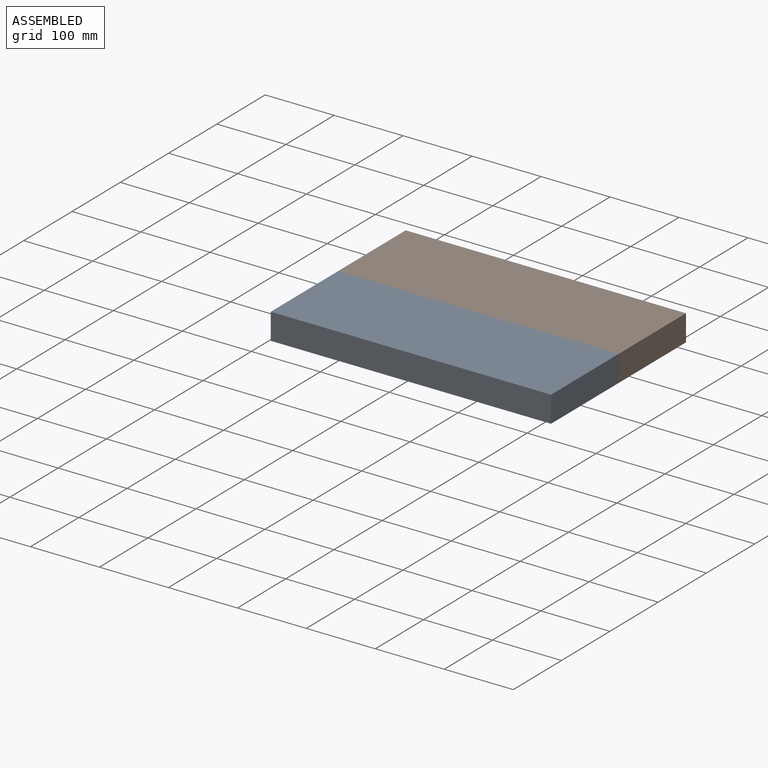
[diagram: assembled view]
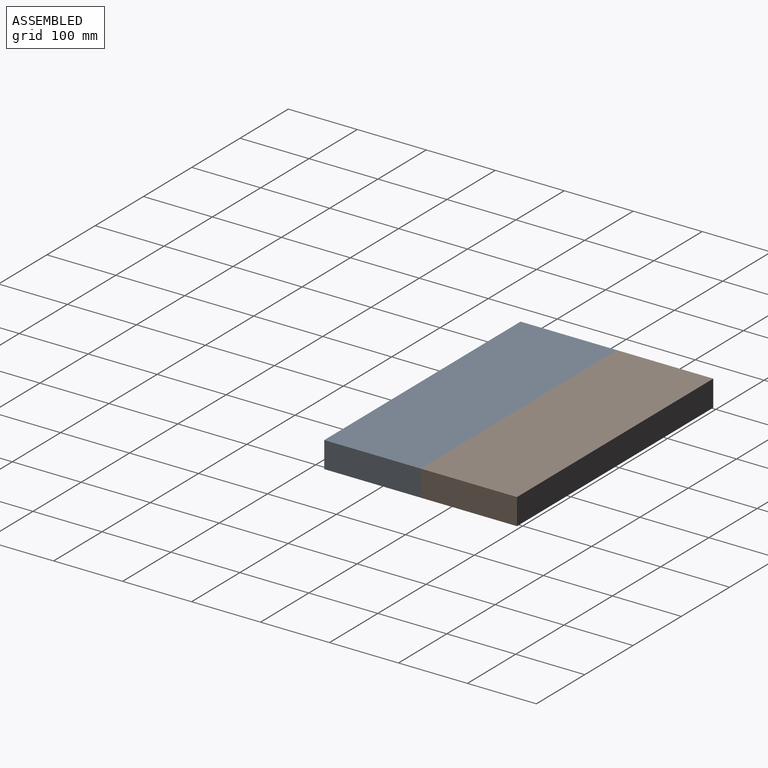
[diagram: assembled view, second angle]
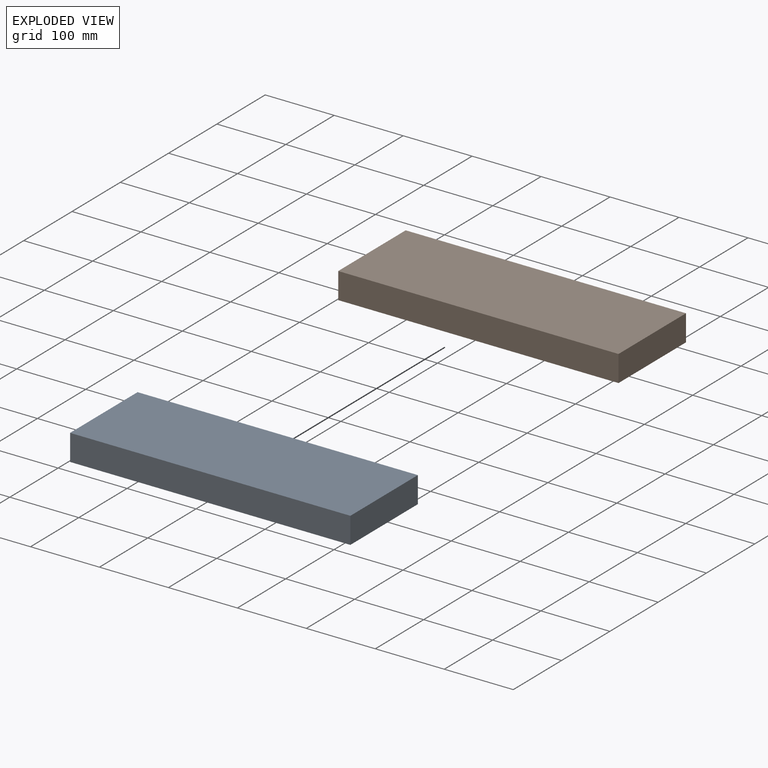
[diagram: exploded view]
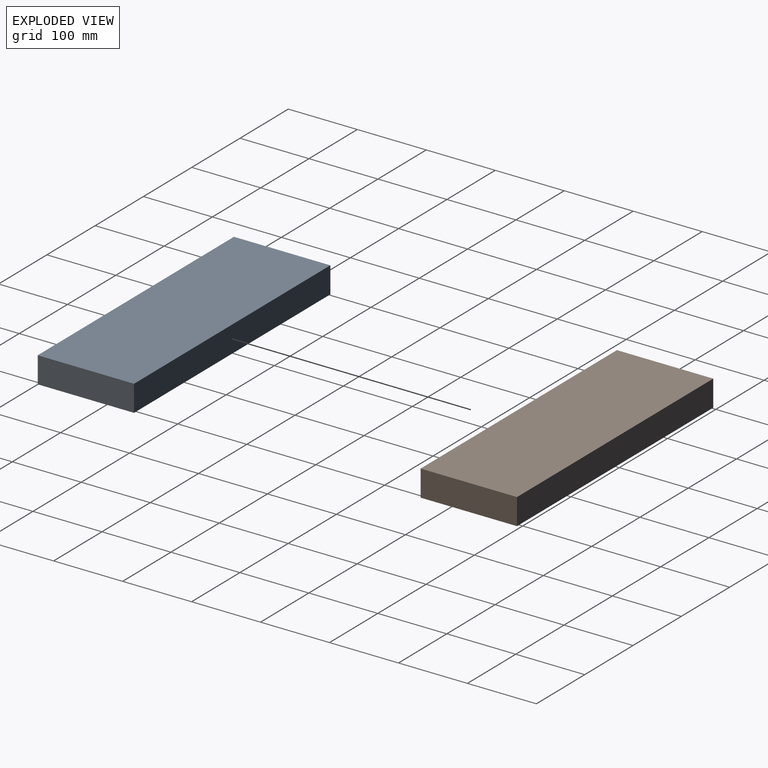
[diagram: exploded view, second angle]
ASSEMBLY  parts=2 mates=3
PART A: 6 faces, bbox 139.7x38.1x406.4 mm
  f0: plane 406.4x38.1mm, normal (1,0,0), area 15483.8mm2, adj f1,f3,f4,f5
  f1: plane 406.4x139.7mm, normal (0,1,0), area 56774.1mm2, adj f0,f2,f4,f5
  f2: plane 406.4x38.1mm, normal (-1,0,0), area 15483.8mm2, adj f1,f3,f4,f5
  f3: plane 406.4x139.7mm, normal (0,-1,0), area 56774.1mm2, adj f0,f2,f4,f5
  f4: plane 139.7x38.1mm, normal (0,0,1), area 5322.6mm2, adj f0,f1,f2,f3
  f5: plane 139.7x38.1mm, normal (0,0,-1), area 5322.6mm2, adj f0,f1,f2,f3
PART B: same geometry as A
PLACE A rot(axis=(-0.58,0.58,-0.58),120deg) t=(14.24,-5.56,-7.62)mm fixed
PLACE B rot(axis=(0.58,0.58,0.58),120deg) t=(14.24,134.14,-7.62)mm
MATE planar B.f2 <-> A.f2  axis (0,-1,0) through (14.24,64.29,-7.62)mm
MATE planar B.f3 <-> A.f1  axis (0,0,-1) through (14.24,134.14,-26.67)mm
MATE planar B.f4 <-> A.f4  axis (1,0,0) through (217.44,134.14,-7.62)mm
